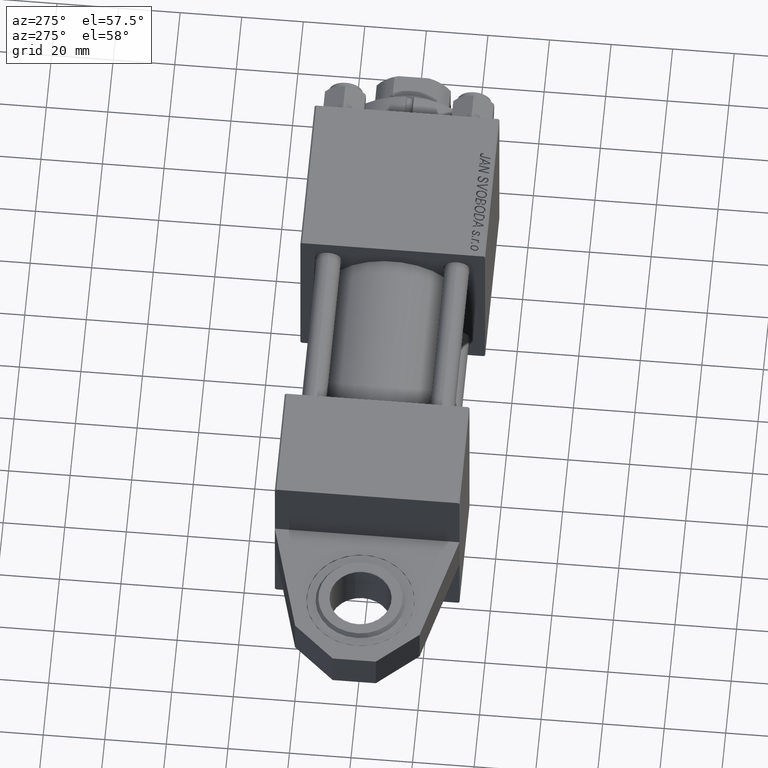
[diagram: clean part render]
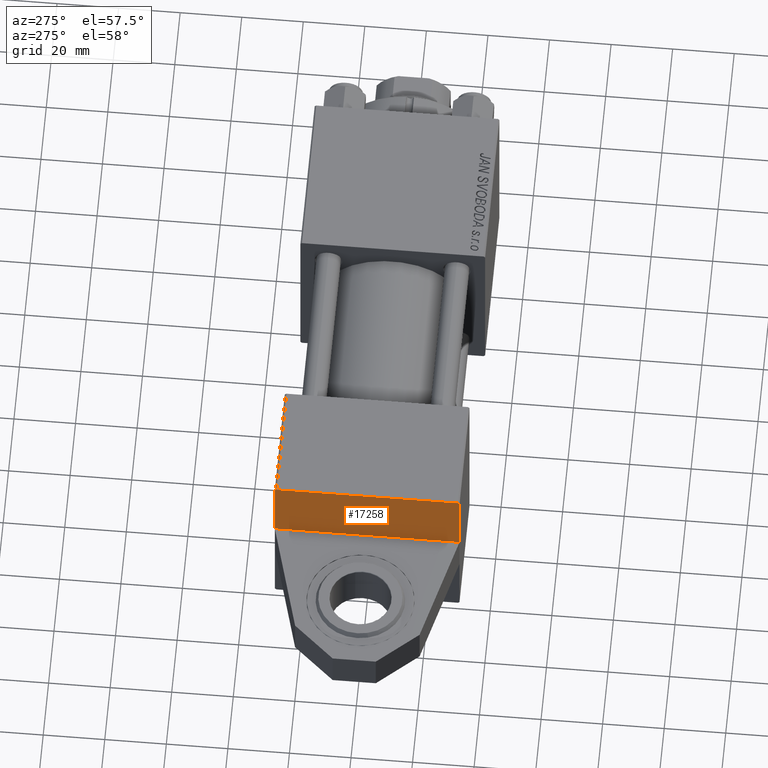
[diagram: same view with one face highlighted and labeled with its STEP entity id]
A machine part, auxiliary view. The second image highlights one B-rep face of the part: STEP entity #17258.
In plain terms, the highlighted planar face has unit normal (-1, 0, 0).
Its self-contained STEP definition (entity closure, byte-faithful):
#123 = CARTESIAN_POINT ( 'NONE',  ( 0.000000000000000000, 29.99999999999999289, -30.00000000000000000 ) ) ;
#796 = ORIENTED_EDGE ( 'NONE', *, *, #8719, .T. ) ;
#2871 = VERTEX_POINT ( 'NONE', #8903 ) ;
#3136 = LINE ( 'NONE', #18645, #18153 ) ;
#4761 = DIRECTION ( 'NONE',  ( -1.000000000000000000, 0.000000000000000000, -0.000000000000000000 ) ) ;
#6574 = EDGE_CURVE ( 'NONE', #44839, #48868, #27326, .T. ) ;
#6708 = EDGE_CURVE ( 'NONE', #2871, #27907, #21461, .T. ) ;
#8719 = EDGE_CURVE ( 'NONE', #48868, #20089, #48812, .T. ) ;
#8903 = CARTESIAN_POINT ( 'NONE',  ( 0.000000000000000000, 29.49999999999999289, 30.00000000000000000 ) ) ;
#11040 = DIRECTION ( 'NONE',  ( 0.000000000000000000, 0.000000000000000000, -1.000000000000000000 ) ) ;
#11170 = CARTESIAN_POINT ( 'NONE',  ( 0.000000000000000000, 29.99999999999999289, -29.50000000000000000 ) ) ;
#12064 = DIRECTION ( 'NONE',  ( -0.000000000000000000, -0.7071067811865574537, -0.7071067811865376918 ) ) ;
#12884 = VECTOR ( 'NONE', #12064, 999.9999999999998863 ) ;
#13193 = VECTOR ( 'NONE', #49536, 1000.000000000000114 ) ;
#15644 = DIRECTION ( 'NONE',  ( 0.000000000000000000, -1.000000000000000000, -1.156482317317871725E-16 ) ) ;
#17258 = ADVANCED_FACE ( 'NONE', ( #32746 ), #21034, .T. ) ;
#18153 = VECTOR ( 'NONE', #11040, 1000.000000000000000 ) ;
#18524 = CARTESIAN_POINT ( 'NONE',  ( 0.000000000000000000, 29.99999999999999289, 29.50000000000000000 ) ) ;
#18645 = CARTESIAN_POINT ( 'NONE',  ( 0.000000000000000000, 29.99999999999999289, 30.00000000000000000 ) ) ;
#20089 = VERTEX_POINT ( 'NONE', #38494 ) ;
#20147 = AXIS2_PLACEMENT_3D ( 'NONE', #28411, #4761, #25103 ) ;
#21034 = PLANE ( 'NONE',  #20147 ) ;
#21461 = LINE ( 'NONE', #32910, #45397 ) ;
#22171 = ORIENTED_EDGE ( 'NONE', *, *, #6574, .T. ) ;
#23526 = CARTESIAN_POINT ( 'NONE',  ( 0.000000000000000000, 6.500000000000000000, 29.99999999999999289 ) ) ;
#23562 = CARTESIAN_POINT ( 'NONE',  ( 0.000000000000000000, 29.74999999999999645, 29.74999999999999645 ) ) ;
#23575 = CARTESIAN_POINT ( 'NONE',  ( 0.000000000000000000, 29.49999999999997868, -30.00000000000000000 ) ) ;
#25103 = DIRECTION ( 'NONE',  ( -0.000000000000000000, 0.000000000000000000, 1.000000000000000000 ) ) ;
#25828 = LINE ( 'NONE', #41362, #29462 ) ;
#27326 = LINE ( 'NONE', #47658, #12884 ) ;
#27907 = VERTEX_POINT ( 'NONE', #23526 ) ;
#28411 = CARTESIAN_POINT ( 'NONE',  ( 0.000000000000000000, 0.000000000000000000, 0.000000000000000000 ) ) ;
#29462 = VECTOR ( 'NONE', #29896, 1000.000000000000000 ) ;
#29679 = VERTEX_POINT ( 'NONE', #18524 ) ;
#29835 = ORIENTED_EDGE ( 'NONE', *, *, #33755, .T. ) ;
#29896 = DIRECTION ( 'NONE',  ( 0.000000000000000000, 0.000000000000000000, -1.000000000000000000 ) ) ;
#31853 = EDGE_CURVE ( 'NONE', #27907, #20089, #25828, .T. ) ;
#32746 = FACE_OUTER_BOUND ( 'NONE', #43042, .T. ) ;
#32910 = CARTESIAN_POINT ( 'NONE',  ( 0.000000000000000000, 29.99999999999999289, 30.00000000000000000 ) ) ;
#33755 = EDGE_CURVE ( 'NONE', #29679, #44839, #3136, .T. ) ;
#34532 = LINE ( 'NONE', #23562, #13193 ) ;
#35737 = VECTOR ( 'NONE', #15644, 1000.000000000000000 ) ;
#38494 = CARTESIAN_POINT ( 'NONE',  ( 0.000000000000000000, 6.500000000000000000, -30.00000000000000711 ) ) ;
#40532 = ORIENTED_EDGE ( 'NONE', *, *, #31853, .F. ) ;
#41362 = CARTESIAN_POINT ( 'NONE',  ( 0.000000000000000000, 6.500000000000000000, 29.99999999999999289 ) ) ;
#43042 = EDGE_LOOP ( 'NONE', ( #40532, #43097, #44007, #29835, #22171, #796 ) ) ;
#43097 = ORIENTED_EDGE ( 'NONE', *, *, #6708, .F. ) ;
#44007 = ORIENTED_EDGE ( 'NONE', *, *, #47947, .T. ) ;
#44839 = VERTEX_POINT ( 'NONE', #11170 ) ;
#44868 = DIRECTION ( 'NONE',  ( 0.000000000000000000, -1.000000000000000000, -1.156482317317871725E-16 ) ) ;
#45397 = VECTOR ( 'NONE', #44868, 1000.000000000000000 ) ;
#47658 = CARTESIAN_POINT ( 'NONE',  ( 0.000000000000000000, 29.74999999999957723, -29.75000000000040501 ) ) ;
#47947 = EDGE_CURVE ( 'NONE', #2871, #29679, #34532, .T. ) ;
#48812 = LINE ( 'NONE', #123, #35737 ) ;
#48868 = VERTEX_POINT ( 'NONE', #23575 ) ;
#49536 = DIRECTION ( 'NONE',  ( 0.000000000000000000, 0.7071067811865474617, -0.7071067811865474617 ) ) ;